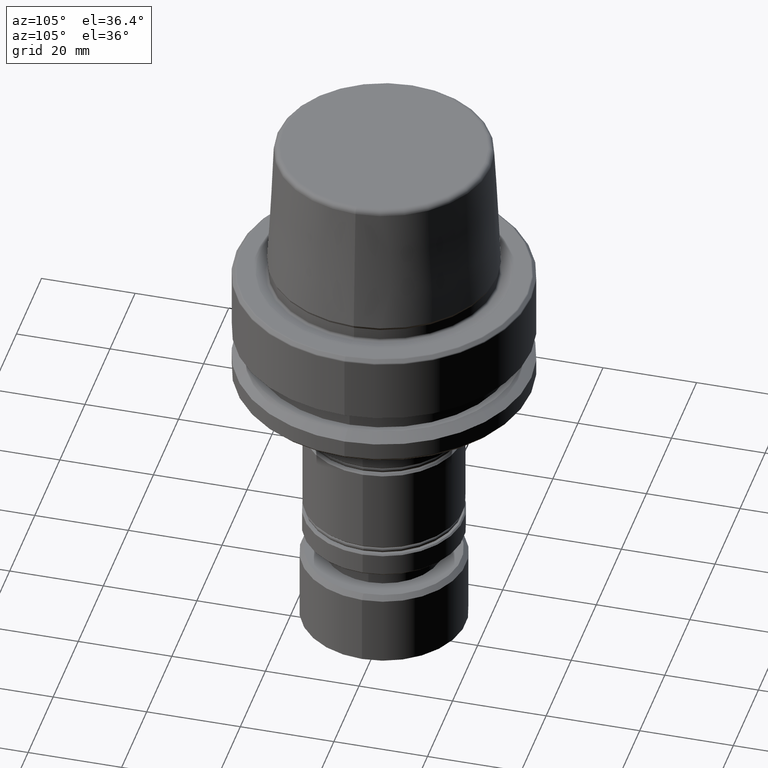
[diagram: clean part render]
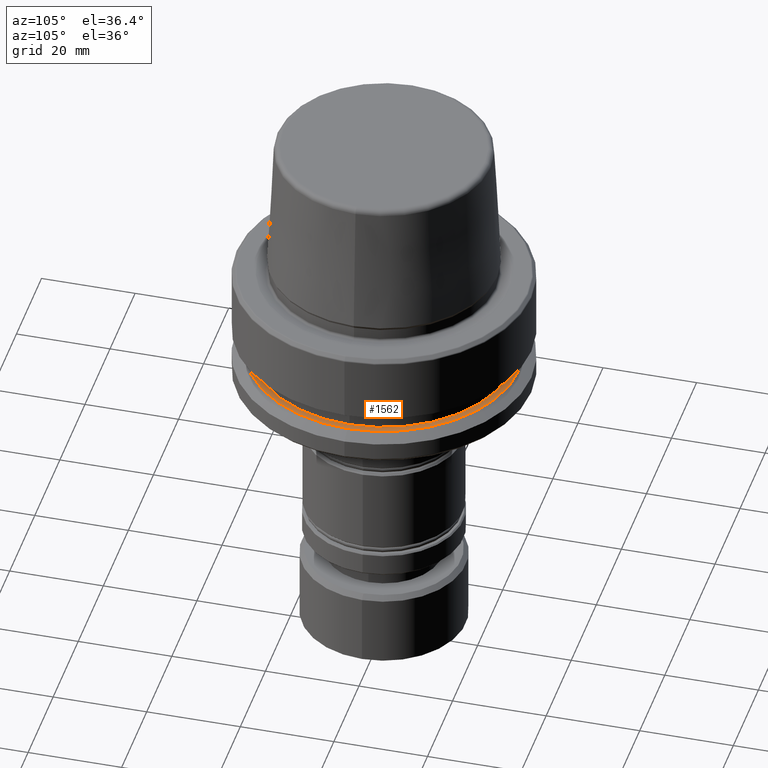
[diagram: same view with one face highlighted and labeled with its STEP entity id]
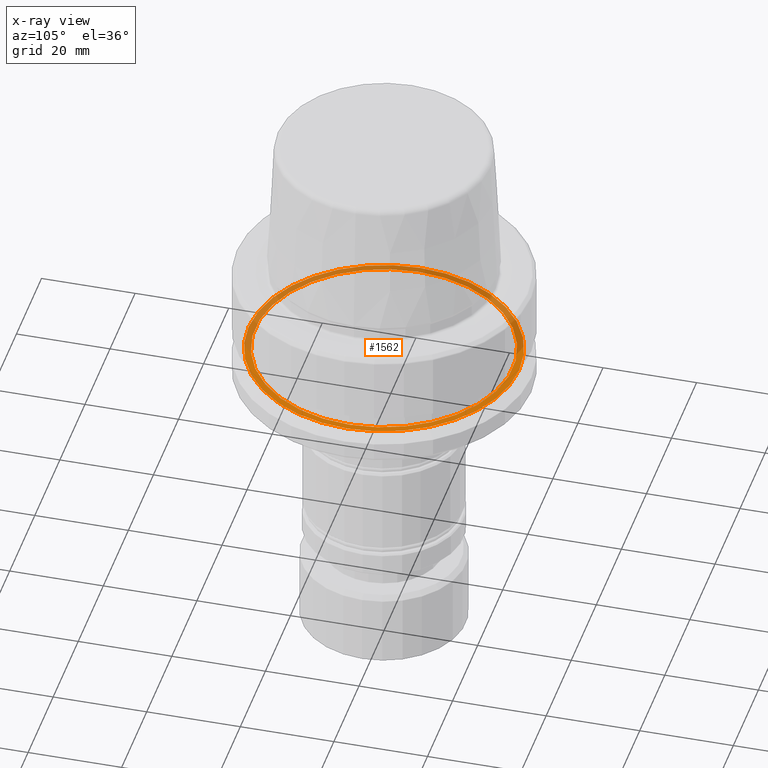
[diagram: x-ray of the same camera — body ghosted, the highlighted face saturated]
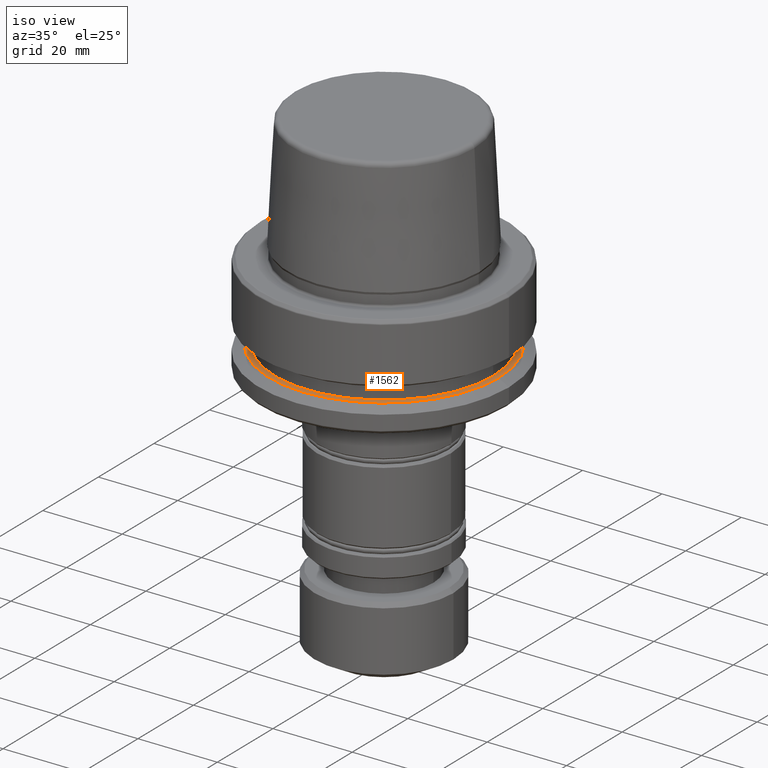
[diagram: same view with one face highlighted and labeled with its STEP entity id]
A machine part, auxiliary view. The second image highlights one B-rep face of the part: STEP entity #1562.
The next image is the same camera in x-ray: the body ghosted, the highlighted face saturated — about 51% of this face is hidden behind the body in this view.
A second angle (iso view) of the same face is appended — the face is thin or edge-on in the first view.
In plain terms, the highlighted planar face has unit normal (0, 0, -1).
Its self-contained STEP definition (entity closure, byte-faithful):
#36 = DIRECTION ( 'NONE',  ( 1.000000000000000000, 0.0000000000000000000, 0.0000000000000000000 ) ) ;
#86 = AXIS2_PLACEMENT_3D ( 'NONE', #89, #2061, #36 ) ;
#89 = CARTESIAN_POINT ( 'NONE',  ( 0.0000000000000000000, 0.0000000000000000000, -19.90000000000001600 ) ) ;
#147 = CARTESIAN_POINT ( 'NONE',  ( 27.49999999999999600, 0.0000000000000000000, -19.90000000000001600 ) ) ;
#160 = ORIENTED_EDGE ( 'NONE', *, *, #440, .F. ) ;
#209 = CARTESIAN_POINT ( 'NONE',  ( 28.94089653438085100, 3.700937523921292900E-015, -19.90000000000001600 ) ) ;
#292 = AXIS2_PLACEMENT_3D ( 'NONE', #1055, #580, #911 ) ;
#308 = ORIENTED_EDGE ( 'NONE', *, *, #814, .F. ) ;
#313 = CARTESIAN_POINT ( 'NONE',  ( 0.0000000000000000000, 0.0000000000000000000, -19.90000000000001600 ) ) ;
#379 = EDGE_CURVE ( 'NONE', #557, #1344, #1990, .T. ) ;
#440 = EDGE_CURVE ( 'NONE', #1906, #1786, #551, .T. ) ;
#444 = AXIS2_PLACEMENT_3D ( 'NONE', #1839, #821, #1666 ) ;
#503 = AXIS2_PLACEMENT_3D ( 'NONE', #2026, #2040, #1973 ) ;
#530 = CIRCLE ( 'NONE', #503, 28.94089653438085100 ) ;
#551 = CIRCLE ( 'NONE', #86, 27.49999999999999600 ) ;
#557 = VERTEX_POINT ( 'NONE', #209 ) ;
#580 = DIRECTION ( 'NONE',  ( 0.0000000000000000000, 0.0000000000000000000, -1.000000000000000000 ) ) ;
#587 = EDGE_LOOP ( 'NONE', ( #308, #160 ) ) ;
#667 = CARTESIAN_POINT ( 'NONE',  ( -27.49999999999999600, 3.367778697655220900E-015, -19.90000000000001600 ) ) ;
#814 = EDGE_CURVE ( 'NONE', #1786, #1906, #1923, .T. ) ;
#821 = DIRECTION ( 'NONE',  ( -0.0000000000000000000, -0.0000000000000000000, 1.000000000000000000 ) ) ;
#846 = CARTESIAN_POINT ( 'NONE',  ( -28.94089653438085100, 0.0000000000000000000, -19.90000000000001600 ) ) ;
#911 = DIRECTION ( 'NONE',  ( -1.000000000000000000, 0.0000000000000000000, -0.0000000000000000000 ) ) ;
#970 = FACE_BOUND ( 'NONE', #587, .T. ) ;
#1012 = EDGE_CURVE ( 'NONE', #1344, #557, #530, .T. ) ;
#1055 = CARTESIAN_POINT ( 'NONE',  ( 0.0000000000000000000, 27.49999999999999600, -19.90000000000000900 ) ) ;
#1262 = ORIENTED_EDGE ( 'NONE', *, *, #379, .T. ) ;
#1344 = VERTEX_POINT ( 'NONE', #846 ) ;
#1358 = PLANE ( 'NONE',  #292 ) ;
#1368 = ORIENTED_EDGE ( 'NONE', *, *, #1012, .T. ) ;
#1549 = DIRECTION ( 'NONE',  ( 1.000000000000000000, 0.0000000000000000000, 0.0000000000000000000 ) ) ;
#1555 = FACE_OUTER_BOUND ( 'NONE', #1964, .T. ) ;
#1562 = ADVANCED_FACE ( 'NONE', ( #970, #1555 ), #1358, .F. ) ;
#1666 = DIRECTION ( 'NONE',  ( 1.000000000000000000, 0.0000000000000000000, 0.0000000000000000000 ) ) ;
#1756 = AXIS2_PLACEMENT_3D ( 'NONE', #313, #1905, #1549 ) ;
#1786 = VERTEX_POINT ( 'NONE', #147 ) ;
#1839 = CARTESIAN_POINT ( 'NONE',  ( 0.0000000000000000000, 0.0000000000000000000, -19.90000000000001600 ) ) ;
#1905 = DIRECTION ( 'NONE',  ( -0.0000000000000000000, -0.0000000000000000000, 1.000000000000000000 ) ) ;
#1906 = VERTEX_POINT ( 'NONE', #667 ) ;
#1923 = CIRCLE ( 'NONE', #444, 27.49999999999999600 ) ;
#1964 = EDGE_LOOP ( 'NONE', ( #1368, #1262 ) ) ;
#1973 = DIRECTION ( 'NONE',  ( 1.000000000000000000, 0.0000000000000000000, 0.0000000000000000000 ) ) ;
#1990 = CIRCLE ( 'NONE', #1756, 28.94089653438085100 ) ;
#2026 = CARTESIAN_POINT ( 'NONE',  ( 0.0000000000000000000, 0.0000000000000000000, -19.90000000000001600 ) ) ;
#2040 = DIRECTION ( 'NONE',  ( -0.0000000000000000000, -0.0000000000000000000, 1.000000000000000000 ) ) ;
#2061 = DIRECTION ( 'NONE',  ( -0.0000000000000000000, -0.0000000000000000000, 1.000000000000000000 ) ) ;